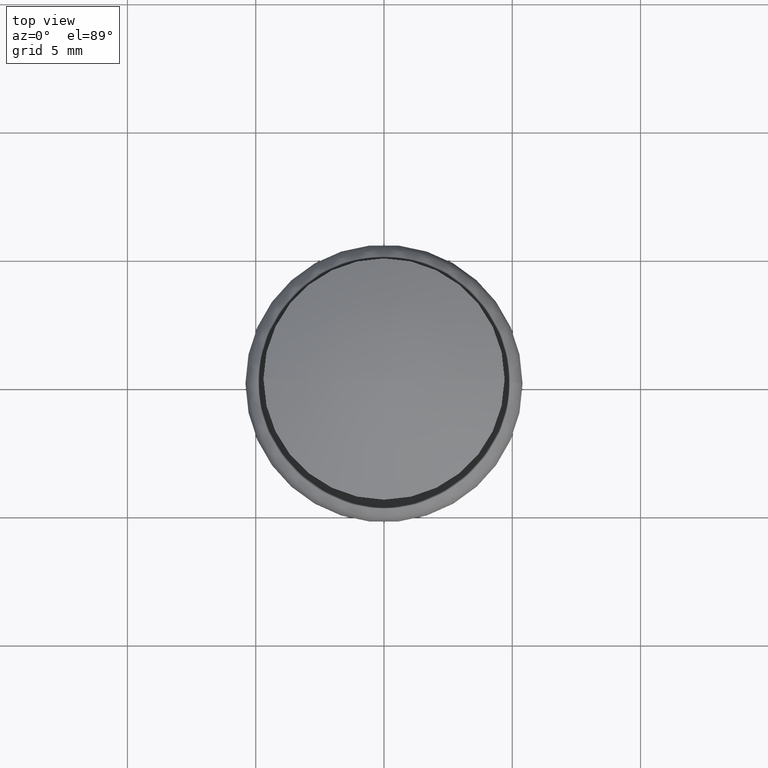
[diagram: clean part render]
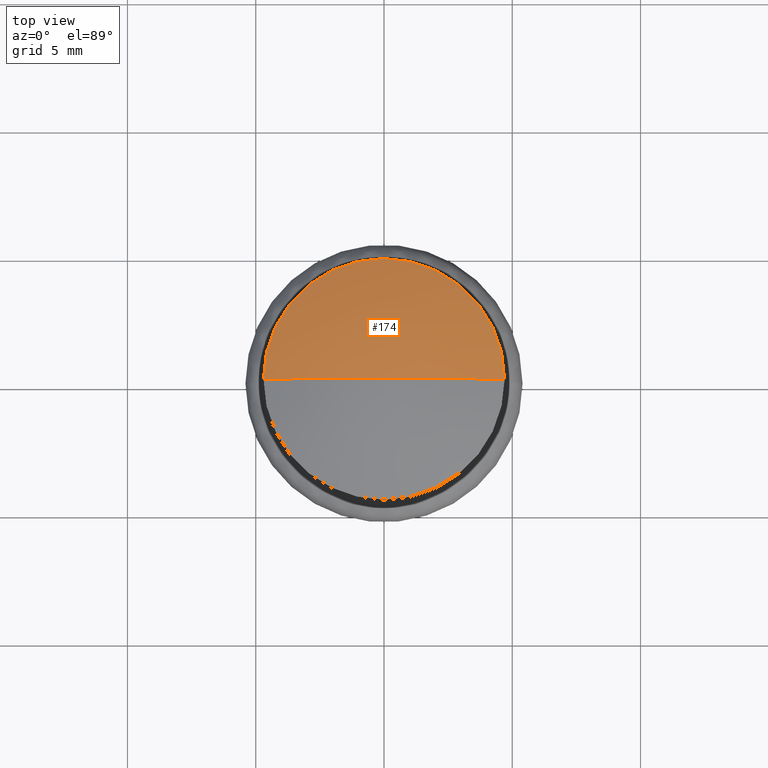
[diagram: same view with one face highlighted and labeled with its STEP entity id]
A machine part, top view. The second image highlights one B-rep face of the part: STEP entity #174.
In plain terms, the highlighted spherical surface has radius 11.545 mm.
Its self-contained STEP definition (entity closure, byte-faithful):
#174=ADVANCED_FACE('',(#818),#817,.T.);
#817=SPHERICAL_SURFACE('',#1449,1.15450000000E+01);
#818=FACE_OUTER_BOUND('',#1450,.T.);
#1446=CARTESIAN_POINT('',(0.00000000000E+00,0.00000000000E+00,-5.04500000000E+00));
#1447=DIRECTION('',(0.00000000000E+00,0.00000000000E+00,-1.00000000000E+00));
#1448=DIRECTION('',(-1.00000000000E+00,1.22460635382E-16,-0.00000000000E+00));
#1449=AXIS2_PLACEMENT_3D('',#1446,#1447,#1448);
#1450=EDGE_LOOP('',(#1936,#1937,#1938));
#1936=ORIENTED_EDGE('',*,*,#2170,.F.);
#1937=ORIENTED_EDGE('',*,*,#2176,.F.);
#1938=ORIENTED_EDGE('',*,*,#2177,.T.);
#2170=EDGE_CURVE('',#3296,#3297,#3298,.T.);
#2176=EDGE_CURVE('',#3336,#3296,#3337,.T.);
#2177=EDGE_CURVE('',#3336,#3297,#3343,.T.);
#3296=VERTEX_POINT('',#4235);
#3297=VERTEX_POINT('',#4236);
#3298=CIRCLE('',#4240,4.70000795576E+00);
#3336=VERTEX_POINT('',#4259);
#3337=(BOUNDED_CURVE() B_SPLINE_CURVE(2,(#4260,#4261,#4262),.UNSPECIFIED.,.F.,.F.) B_SPLINE_CURVE_WITH_KNOTS((3,3),(0.00000000000E+00,9.99997965990E-01),.UNSPECIFIED.) CURVE() GEOMETRIC_REPRESENTATION_ITEM() RATIONAL_B_SPLINE_CURVE((1.00000000000E+00,9.78105762392E-01,1.00000000000E+00)) REPRESENTATION_ITEM('') );
#3343=(BOUNDED_CURVE() B_SPLINE_CURVE(2,(#4263,#4264,#4265),.UNSPECIFIED.,.F.,.F.) B_SPLINE_CURVE_WITH_KNOTS((3,3),(0.00000000000E+00,1.00000000000E+00),.UNSPECIFIED.) CURVE() GEOMETRIC_REPRESENTATION_ITEM() RATIONAL_B_SPLINE_CURVE((7.50000000000E-01,7.33579321794E-01,7.50000000000E-01)) REPRESENTATION_ITEM('') );
#4235=CARTESIAN_POINT('',(-4.70000795576E+00,0.00000000000E+00,5.49999645404E+00));
#4236=CARTESIAN_POINT('',(4.70000795576E+00,2.96059473233E-16,5.49999645404E+00));
#4237=CARTESIAN_POINT('',(0.00000000000E+00,0.00000000000E+00,5.49999645404E+00));
#4238=DIRECTION('',(-0.00000000000E+00,0.00000000000E+00,-1.00000000000E+00));
#4239=DIRECTION('',(-1.00000000000E+00,-1.22460635382E-16,0.00000000000E+00));
#4240=AXIS2_PLACEMENT_3D('',#4237,#4238,#4239);
#4259=CARTESIAN_POINT('',(-7.06904017744E-16,8.65679151672E-32,6.50000000000E+00));
#4260=CARTESIAN_POINT('',(-7.06904017744E-16,8.65679151672E-32,6.50000000000E+00));
#4261=CARTESIAN_POINT('',(-2.45639263902E+00,3.00811403323E-16,6.50000000000E+00));
#4262=CARTESIAN_POINT('',(-4.70001688281E+00,5.75567053777E-16,5.49999247516E+00));
#4263=CARTESIAN_POINT('',(7.06904017744E-16,-9.86076131526E-32,6.50000000000E+00));
#4264=CARTESIAN_POINT('',(2.45639263902E+00,-3.02686564804E-16,6.50000000000E+00));
#4265=CARTESIAN_POINT('',(4.70001688281E+00,-8.88178419700E-16,5.49999247516E+00));